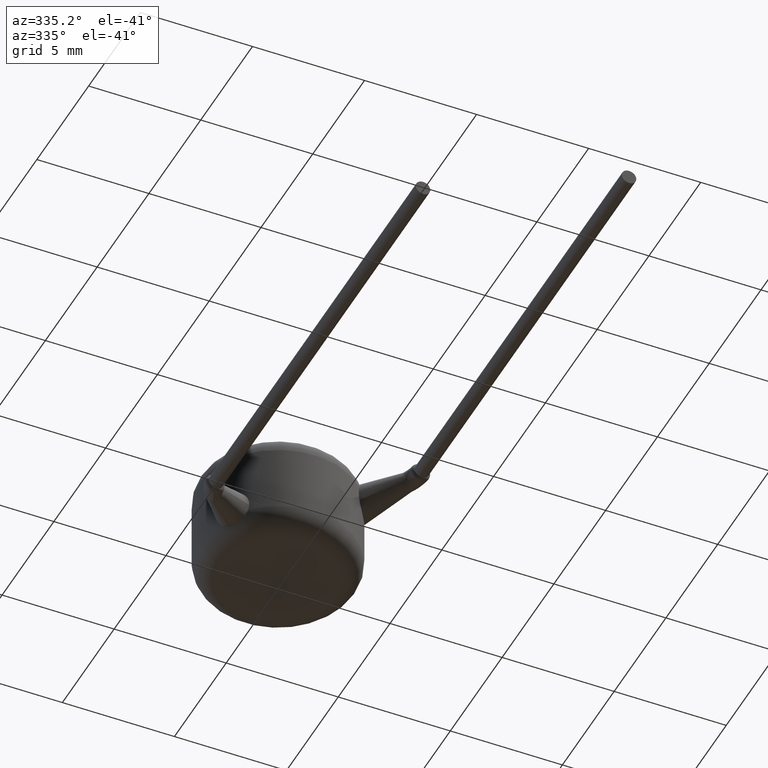
[diagram: clean part render]
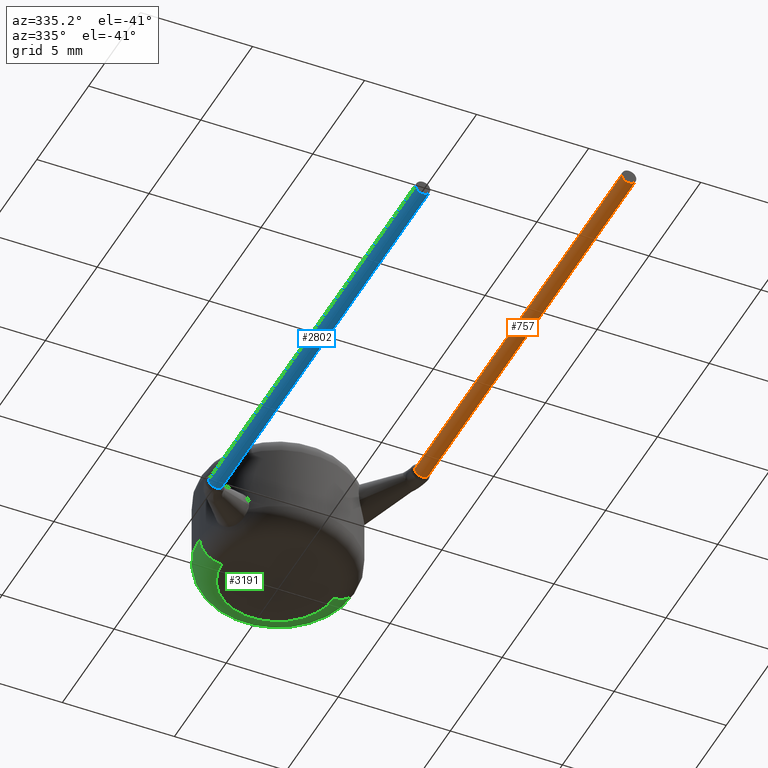
[diagram: same view with three faces highlighted in distinct colors, each labeled with its STEP entity id]
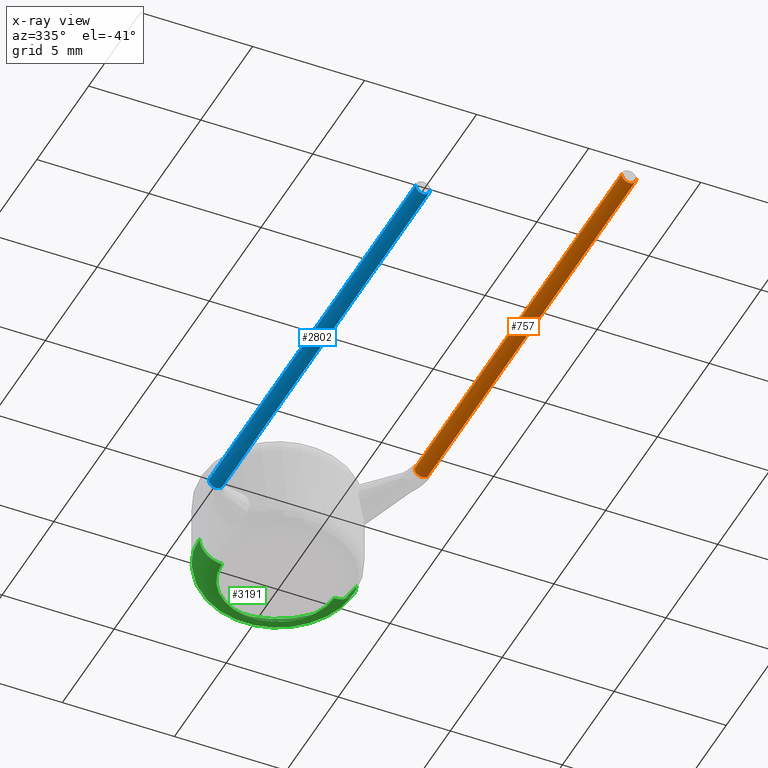
[diagram: x-ray of the same camera — body ghosted, the three highlighted faces saturated]
A machine part, auxiliary view with three faces highlighted in distinct colors.
The next image is the same camera in x-ray (body ghosted, the three faces saturated) — at least one of them is partly hidden behind the body in this view.
Their STEP definitions:

[orange] entity #757 — the highlighted cylindrical surface (edge-blend (fillet) strip) has radius 0.325 mm, axis along (0, -1, 0).
#31 = VERTEX_POINT ( 'NONE', #2729 ) ;
#41 = EDGE_CURVE ( 'NONE', #31, #331, #313, .T. ) ;
#67 = FACE_OUTER_BOUND ( 'NONE', #1084, .T. ) ;
#75 = CARTESIAN_POINT ( 'NONE',  ( 4.920725150090299300, -3.954901873055404400, 4.469596492895823800 ) ) ;
#170 = ORIENTED_EDGE ( 'NONE', *, *, #3774, .F. ) ;
#180 = VERTEX_POINT ( 'NONE', #1942 ) ;
#313 = LINE ( 'NONE', #75, #4127 ) ;
#321 = DIRECTION ( 'NONE',  ( 0.9915111155844310600, 0.0000000000000000000, 0.1300219507333936800 ) ) ;
#331 = VERTEX_POINT ( 'NONE', #2314 ) ;
#514 = CARTESIAN_POINT ( 'NONE',  ( 4.595725150090299100, -3.954901873055402600, 4.469596492895824700 ) ) ;
#669 = EDGE_CURVE ( 'NONE', #180, #1708, #3571, .T. ) ;
#695 = CARTESIAN_POINT ( 'NONE',  ( 4.270725150090299800, -3.954901873055404400, 4.469596492895823800 ) ) ;
#757 = ADVANCED_FACE ( 'NONE', ( #67 ), #3760, .T. ) ;
#949 = AXIS2_PLACEMENT_3D ( 'NONE', #1043, #2352, #3691 ) ;
#971 = ORIENTED_EDGE ( 'NONE', *, *, #669, .F. ) ;
#1043 = CARTESIAN_POINT ( 'NONE',  ( 4.595725150090299100, -3.954901873055402600, 4.469596492895824700 ) ) ;
#1074 = CARTESIAN_POINT ( 'NONE',  ( 4.270725150090302500, -23.95490187305540500, 4.469596492895823800 ) ) ;
#1084 = EDGE_LOOP ( 'NONE', ( #971, #2952, #1829, #2170, #170 ) ) ;
#1282 = DIRECTION ( 'NONE',  ( 3.053113317719180500E-016, -1.000000000000000000, -1.110223024625156500E-016 ) ) ;
#1335 = CIRCLE ( 'NONE', #1991, 0.3249999999999999600 ) ;
#1658 = VERTEX_POINT ( 'NONE', #2329 ) ;
#1708 = VERTEX_POINT ( 'NONE', #1074 ) ;
#1829 = ORIENTED_EDGE ( 'NONE', *, *, #2661, .T. ) ;
#1942 = CARTESIAN_POINT ( 'NONE',  ( 4.270725150090299000, -3.954901873055402600, 4.469596492895823800 ) ) ;
#1974 = DIRECTION ( 'NONE',  ( 1.000000000000000000, 0.0000000000000000000, 0.0000000000000000000 ) ) ;
#1991 = AXIS2_PLACEMENT_3D ( 'NONE', #4266, #1282, #321 ) ;
#2170 = ORIENTED_EDGE ( 'NONE', *, *, #41, .T. ) ;
#2314 = CARTESIAN_POINT ( 'NONE',  ( 4.920725150090302000, -23.95490187305540500, 4.469596492895823800 ) ) ;
#2329 = CARTESIAN_POINT ( 'NONE',  ( 4.812552390642007800, -3.954901873055402600, 4.227499512834662600 ) ) ;
#2352 = DIRECTION ( 'NONE',  ( -0.0000000000000000000, -1.000000000000000000, -0.0000000000000000000 ) ) ;
#2391 = EDGE_CURVE ( 'NONE', #180, #1658, #2709, .T. ) ;
#2661 = EDGE_CURVE ( 'NONE', #1658, #31, #4104, .T. ) ;
#2705 = DIRECTION ( 'NONE',  ( 1.301042606982605300E-016, -1.000000000000000000, 4.336808689942017700E-017 ) ) ;
#2709 = CIRCLE ( 'NONE', #3304, 0.3249999999999997900 ) ;
#2729 = CARTESIAN_POINT ( 'NONE',  ( 4.920725150090298400, -3.954901873055402600, 4.469596492895823800 ) ) ;
#2778 = DIRECTION ( 'NONE',  ( -0.0000000000000000000, -1.000000000000000000, -0.0000000000000000000 ) ) ;
#2952 = ORIENTED_EDGE ( 'NONE', *, *, #2391, .T. ) ;
#2965 = DIRECTION ( 'NONE',  ( 1.301042606982605300E-016, -1.000000000000000000, 4.336808689942017700E-017 ) ) ;
#3304 = AXIS2_PLACEMENT_3D ( 'NONE', #514, #2778, #3764 ) ;
#3571 = LINE ( 'NONE', #695, #3925 ) ;
#3637 = DIRECTION ( 'NONE',  ( 1.301042606982605300E-016, -1.000000000000000000, 4.336808689942017700E-017 ) ) ;
#3691 = DIRECTION ( 'NONE',  ( -5.337610695313256100E-015, 0.0000000000000000000, 1.000000000000000000 ) ) ;
#3760 = CYLINDRICAL_SURFACE ( 'NONE', #4015, 0.3249999999999997900 ) ;
#3764 = DIRECTION ( 'NONE',  ( 0.0000000000000000000, 0.0000000000000000000, 1.000000000000000000 ) ) ;
#3774 = EDGE_CURVE ( 'NONE', #1708, #331, #1335, .T. ) ;
#3925 = VECTOR ( 'NONE', #3637, 1000.000000000000000 ) ;
#3985 = CARTESIAN_POINT ( 'NONE',  ( 4.595725150090300000, -3.954901873055404400, 4.469596492895823800 ) ) ;
#4015 = AXIS2_PLACEMENT_3D ( 'NONE', #3985, #2965, #1974 ) ;
#4104 = CIRCLE ( 'NONE', #949, 0.3249999999999997900 ) ;
#4127 = VECTOR ( 'NONE', #2705, 1000.000000000000000 ) ;
#4266 = CARTESIAN_POINT ( 'NONE',  ( 4.595725150090302700, -23.95490187305540500, 4.469596492895824700 ) ) ;

[blue] entity #2802 — the highlighted cylindrical surface (edge-blend (fillet) strip) has radius 0.325 mm, axis along (-0, -1, -0).
#252 = AXIS2_PLACEMENT_3D ( 'NONE', #276, #1560, #2240 ) ;
#276 = CARTESIAN_POINT ( 'NONE',  ( -4.595725150090284000, -3.954901873055402600, 0.5304035071041445200 ) ) ;
#423 = VERTEX_POINT ( 'NONE', #2996 ) ;
#490 = VERTEX_POINT ( 'NONE', #3696 ) ;
#518 = VERTEX_POINT ( 'NONE', #1158 ) ;
#530 = DIRECTION ( 'NONE',  ( 2.081668171172168500E-016, 1.000000000000000000, -0.0000000000000000000 ) ) ;
#541 = EDGE_CURVE ( 'NONE', #3742, #423, #2118, .T. ) ;
#634 = AXIS2_PLACEMENT_3D ( 'NONE', #2509, #530, #3152 ) ;
#761 = EDGE_CURVE ( 'NONE', #1688, #423, #3451, .T. ) ;
#855 = CARTESIAN_POINT ( 'NONE',  ( -4.270725150090284700, -3.954901873055402600, 0.5304035071041445200 ) ) ;
#1134 = VECTOR ( 'NONE', #2672, 1000.000000000000000 ) ;
#1135 = ORIENTED_EDGE ( 'NONE', *, *, #761, .F. ) ;
#1158 = CARTESIAN_POINT ( 'NONE',  ( -4.629890787905558200, -3.954901873055402600, 0.2072043282798868300 ) ) ;
#1174 = VECTOR ( 'NONE', #3487, 1000.000000000000000 ) ;
#1249 = EDGE_CURVE ( 'NONE', #490, #3742, #3198, .T. ) ;
#1278 = ORIENTED_EDGE ( 'NONE', *, *, #1249, .T. ) ;
#1309 = AXIS2_PLACEMENT_3D ( 'NONE', #2108, #4038, #2754 ) ;
#1400 = CYLINDRICAL_SURFACE ( 'NONE', #1869, 0.3249999999999997900 ) ;
#1560 = DIRECTION ( 'NONE',  ( 2.081668171172168500E-016, 1.000000000000000000, -0.0000000000000000000 ) ) ;
#1688 = VERTEX_POINT ( 'NONE', #2999 ) ;
#1869 = AXIS2_PLACEMENT_3D ( 'NONE', #2840, #2253, #3233 ) ;
#1937 = CARTESIAN_POINT ( 'NONE',  ( -4.270725150090286500, -23.95490187305540200, 0.5304035071041438600 ) ) ;
#2108 = CARTESIAN_POINT ( 'NONE',  ( -4.595725150090284000, -3.954901873055402600, 0.5304035071041445200 ) ) ;
#2118 = CIRCLE ( 'NONE', #634, 0.3250000000000000700 ) ;
#2219 = EDGE_CURVE ( 'NONE', #490, #518, #2624, .T. ) ;
#2240 = DIRECTION ( 'NONE',  ( 0.9915111155844308400, 0.0000000000000000000, 0.1300219507333949800 ) ) ;
#2253 = DIRECTION ( 'NONE',  ( -1.301042606982605300E-016, -1.000000000000000000, -6.505213034913026600E-017 ) ) ;
#2509 = CARTESIAN_POINT ( 'NONE',  ( -4.595725150090286700, -23.95490187305540200, 0.5304035071041431900 ) ) ;
#2624 = CIRCLE ( 'NONE', #1309, 0.3250000000000000700 ) ;
#2672 = DIRECTION ( 'NONE',  ( -1.301042606982605300E-016, -1.000000000000000000, -6.505213034913026600E-017 ) ) ;
#2754 = DIRECTION ( 'NONE',  ( 0.9915111155844307200, 0.0000000000000000000, 0.1300219507333966500 ) ) ;
#2802 = ADVANCED_FACE ( 'NONE', ( #3890 ), #1400, .T. ) ;
#2840 = CARTESIAN_POINT ( 'NONE',  ( -4.595725150090284000, -3.954901873055402600, 0.5304035071041445200 ) ) ;
#2996 = CARTESIAN_POINT ( 'NONE',  ( -4.920725150090286900, -23.95490187305540200, 0.5304035071041438600 ) ) ;
#2999 = CARTESIAN_POINT ( 'NONE',  ( -4.920725150090284200, -3.954901873055402600, 0.5304035071041438600 ) ) ;
#3053 = ORIENTED_EDGE ( 'NONE', *, *, #3239, .F. ) ;
#3130 = ORIENTED_EDGE ( 'NONE', *, *, #2219, .F. ) ;
#3152 = DIRECTION ( 'NONE',  ( 0.9915111155844307200, 0.0000000000000000000, 0.1300219507333966500 ) ) ;
#3198 = LINE ( 'NONE', #855, #1174 ) ;
#3233 = DIRECTION ( 'NONE',  ( 1.000000000000000000, 0.0000000000000000000, 0.0000000000000000000 ) ) ;
#3239 = EDGE_CURVE ( 'NONE', #518, #1688, #3719, .T. ) ;
#3451 = LINE ( 'NONE', #3955, #1134 ) ;
#3487 = DIRECTION ( 'NONE',  ( -1.301042606982605300E-016, -1.000000000000000000, -6.505213034913026600E-017 ) ) ;
#3564 = ORIENTED_EDGE ( 'NONE', *, *, #541, .T. ) ;
#3696 = CARTESIAN_POINT ( 'NONE',  ( -4.270725150090284700, -3.954901873055402600, 0.5304035071041438600 ) ) ;
#3719 = CIRCLE ( 'NONE', #252, 0.3250000000000000100 ) ;
#3742 = VERTEX_POINT ( 'NONE', #1937 ) ;
#3890 = FACE_OUTER_BOUND ( 'NONE', #3956, .T. ) ;
#3955 = CARTESIAN_POINT ( 'NONE',  ( -4.920725150090284200, -3.954901873055402600, 0.5304035071041445200 ) ) ;
#3956 = EDGE_LOOP ( 'NONE', ( #1135, #3053, #3130, #1278, #3564 ) ) ;
#4038 = DIRECTION ( 'NONE',  ( 2.081668171172168500E-016, 1.000000000000000000, -0.0000000000000000000 ) ) ;

[green] entity #3191 — the highlighted toroidal blend (fillet) surface has major radius 2.5 mm and minor (blend) radius 1 mm.
#29 = VERTEX_POINT ( 'NONE', #3676 ) ;
#317 = ORIENTED_EDGE ( 'NONE', *, *, #1901, .F. ) ;
#511 = VERTEX_POINT ( 'NONE', #1372 ) ;
#601 = ORIENTED_EDGE ( 'NONE', *, *, #1631, .T. ) ;
#793 = VERTEX_POINT ( 'NONE', #3997 ) ;
#1021 = CARTESIAN_POINT ( 'NONE',  ( -2.500000000000000000, 3.061616997868383100E-016, 1.000000000000000000 ) ) ;
#1056 = DIRECTION ( 'NONE',  ( 1.000000000000000000, 0.0000000000000000000, 0.0000000000000000000 ) ) ;
#1161 = CARTESIAN_POINT ( 'NONE',  ( 2.500000000000000000, 0.0000000000000000000, 1.000000000000000000 ) ) ;
#1216 = EDGE_CURVE ( 'NONE', #793, #29, #3803, .T. ) ;
#1287 = VERTEX_POINT ( 'NONE', #2854 ) ;
#1341 = ORIENTED_EDGE ( 'NONE', *, *, #1216, .F. ) ;
#1356 = CARTESIAN_POINT ( 'NONE',  ( 0.0000000000000000000, 0.0000000000000000000, 1.000000000000000000 ) ) ;
#1372 = CARTESIAN_POINT ( 'NONE',  ( 3.500000000000000000, 4.286263797015736600E-016, 1.000000000000000000 ) ) ;
#1422 = CARTESIAN_POINT ( 'NONE',  ( 0.0000000000000000000, 0.0000000000000000000, 0.0000000000000000000 ) ) ;
#1474 = DIRECTION ( 'NONE',  ( 1.000000000000000000, 0.0000000000000000000, 0.0000000000000000000 ) ) ;
#1488 = DIRECTION ( 'NONE',  ( 0.0000000000000000000, 0.0000000000000000000, 1.000000000000000000 ) ) ;
#1508 = CARTESIAN_POINT ( 'NONE',  ( 0.0000000000000000000, 0.0000000000000000000, 1.000000000000000000 ) ) ;
#1631 = EDGE_CURVE ( 'NONE', #793, #1287, #3129, .T. ) ;
#1836 = DIRECTION ( 'NONE',  ( 0.0000000000000000000, 0.0000000000000000000, -1.000000000000000000 ) ) ;
#1868 = TOROIDAL_SURFACE ( 'NONE', #2576, 2.500000000000000000, 1.000000000000000000 ) ;
#1901 = EDGE_CURVE ( 'NONE', #29, #511, #4062, .T. ) ;
#2133 = AXIS2_PLACEMENT_3D ( 'NONE', #1422, #2761, #3727 ) ;
#2195 = CIRCLE ( 'NONE', #4027, 3.500000000000000000 ) ;
#2576 = AXIS2_PLACEMENT_3D ( 'NONE', #1508, #1488, #1474 ) ;
#2618 = EDGE_CURVE ( 'NONE', #511, #1287, #2195, .T. ) ;
#2671 = AXIS2_PLACEMENT_3D ( 'NONE', #1021, #3331, #2987 ) ;
#2761 = DIRECTION ( 'NONE',  ( -0.0000000000000000000, -0.0000000000000000000, -1.000000000000000000 ) ) ;
#2854 = CARTESIAN_POINT ( 'NONE',  ( -3.500000000000000000, 0.0000000000000000000, 1.000000000000000000 ) ) ;
#2987 = DIRECTION ( 'NONE',  ( -1.000000000000000000, 1.224646799147353500E-016, 0.0000000000000000000 ) ) ;
#3000 = EDGE_LOOP ( 'NONE', ( #1341, #601, #3253, #317 ) ) ;
#3108 = AXIS2_PLACEMENT_3D ( 'NONE', #1161, #3797, #1836 ) ;
#3129 = CIRCLE ( 'NONE', #2671, 1.000000000000000000 ) ;
#3191 = ADVANCED_FACE ( 'NONE', ( #3414 ), #1868, .T. ) ;
#3253 = ORIENTED_EDGE ( 'NONE', *, *, #2618, .F. ) ;
#3331 = DIRECTION ( 'NONE',  ( 1.224646799147353200E-016, 1.000000000000000000, -0.0000000000000000000 ) ) ;
#3335 = DIRECTION ( 'NONE',  ( 0.0000000000000000000, 0.0000000000000000000, 1.000000000000000000 ) ) ;
#3414 = FACE_OUTER_BOUND ( 'NONE', #3000, .T. ) ;
#3676 = CARTESIAN_POINT ( 'NONE',  ( 2.500000000000000000, 0.0000000000000000000, 0.0000000000000000000 ) ) ;
#3727 = DIRECTION ( 'NONE',  ( 1.000000000000000000, 0.0000000000000000000, 0.0000000000000000000 ) ) ;
#3797 = DIRECTION ( 'NONE',  ( 0.0000000000000000000, -1.000000000000000000, 0.0000000000000000000 ) ) ;
#3803 = CIRCLE ( 'NONE', #2133, 2.500000000000000000 ) ;
#3997 = CARTESIAN_POINT ( 'NONE',  ( -2.500000000000000000, 3.673940397442059900E-016, 0.0000000000000000000 ) ) ;
#4027 = AXIS2_PLACEMENT_3D ( 'NONE', #1356, #3335, #1056 ) ;
#4062 = CIRCLE ( 'NONE', #3108, 1.000000000000000000 ) ;